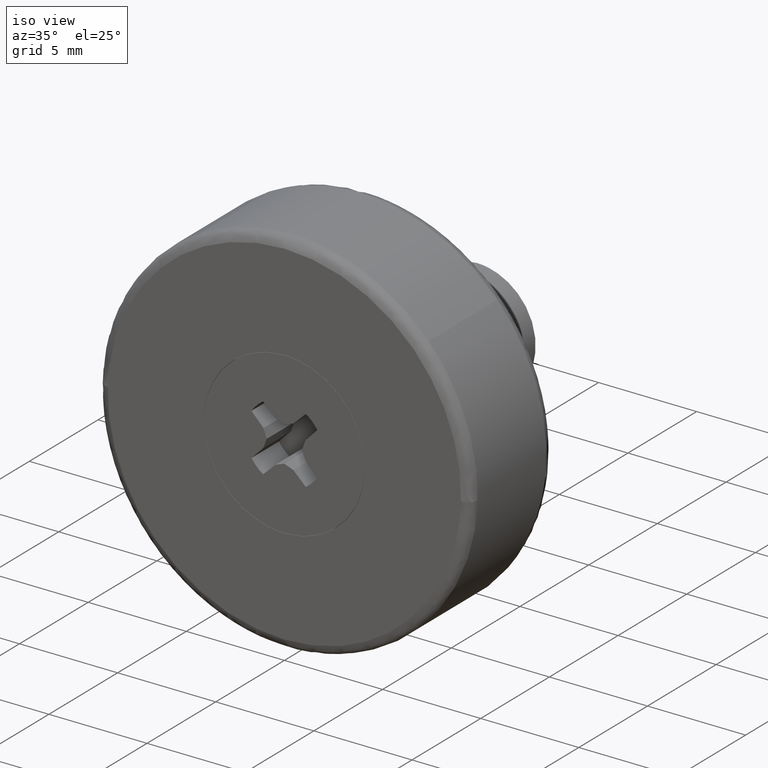
[diagram: clean part render]
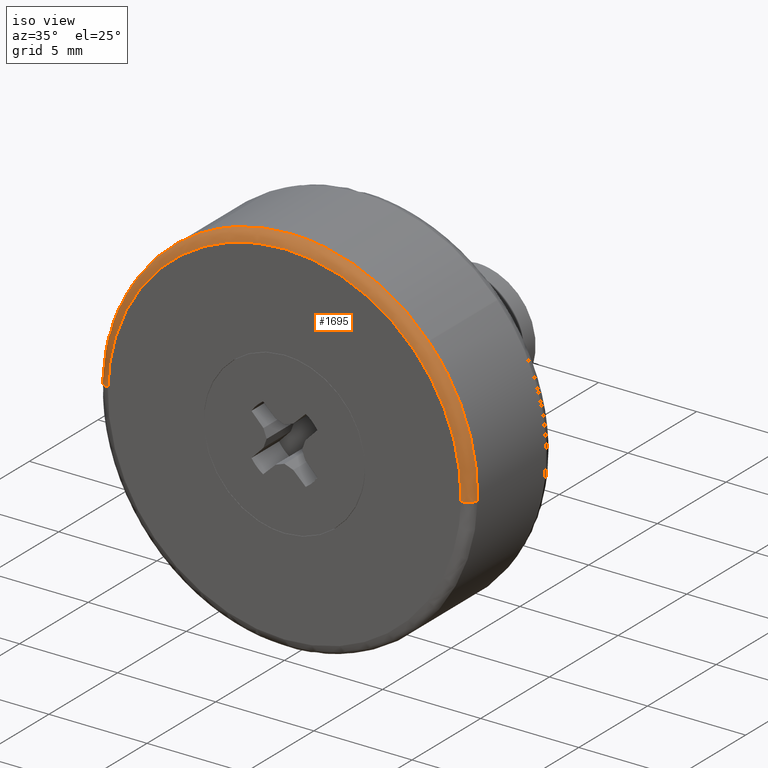
[diagram: same view with one face highlighted and labeled with its STEP entity id]
A machine part, iso view. The second image highlights one B-rep face of the part: STEP entity #1695.
In plain terms, the highlighted face is a freeform B-spline surface patch.
Its self-contained STEP definition (entity closure, byte-faithful):
#1328=CARTESIAN_POINT('',(-4.600085988359925,0.499999999981940,8.311991873172854));
#1329=VERTEX_POINT('',#1328);
#1330=CARTESIAN_POINT('',(-9.496999798191341,0.499999999859289,0.238735906711980));
#1331=VERTEX_POINT('',#1330);
#1332=CARTESIAN_POINT('',(-4.600085988359925,0.499999999981940,8.311991873172854));
#1333=CARTESIAN_POINT('',(-9.360278201085677,0.499999999941924,5.677569963987287));
#1334=CARTESIAN_POINT('',(-9.496999798191341,0.499999999859289,0.238735906711980));
#1342=(BOUNDED_CURVE()B_SPLINE_CURVE(2,(#1332,#1333,#1334),.UNSPECIFIED.,.F.,.U.)B_SPLINE_CURVE_WITH_KNOTS((3,3),(0.582484261791916,0.745579891769798),.UNSPECIFIED.)CURVE()GEOMETRIC_REPRESENTATION_ITEM()RATIONAL_B_SPLINE_CURVE((0.870495159113431,0.805504439765904,0.989826157681555))REPRESENTATION_ITEM(''));
#1343=EDGE_CURVE('',#1329,#1331,#1342,.T.);
#1414=CARTESIAN_POINT('',(7.004135048799357,0.500000000000003,6.418106591369461));
#1415=VERTEX_POINT('',#1414);
#1421=CARTESIAN_POINT('',(9.496999798191341,0.499999999859289,-0.238735906711978));
#1422=VERTEX_POINT('',#1421);
#1423=CARTESIAN_POINT('',(9.496999798191341,0.499999999859289,-0.238735906711978));
#1424=CARTESIAN_POINT('',(9.500000000000000,0.500000000000000,-0.119386805172379));
#1425=CARTESIAN_POINT('',(9.500000000000000,0.500000000000000,-1.552808E-016));
#1426=CARTESIAN_POINT('',(9.499999999999998,0.500000000000000,3.694347357720723));
#1427=CARTESIAN_POINT('',(7.004135048799357,0.500000000000003,6.418106591369461));
#1435=(BOUNDED_CURVE()B_SPLINE_CURVE(2,(#1423,#1424,#1425,#1426,#1427),.UNSPECIFIED.,.F.,.U.)B_SPLINE_CURVE_WITH_KNOTS((3,2,3),(0.245579891769798,0.250000000000000,0.368415192661570),.UNSPECIFIED.)CURVE()GEOMETRIC_REPRESENTATION_ITEM()RATIONAL_B_SPLINE_CURVE((0.989826157681553,0.994821521091809,1.0,0.861267972259750,0.853959782865036))REPRESENTATION_ITEM(''));
#1436=EDGE_CURVE('',#1422,#1415,#1435,.T.);
#1485=CARTESIAN_POINT('',(0.0,0.500000000000000,9.500000000000000));
#1486=VERTEX_POINT('',#1485);
#1487=CARTESIAN_POINT('',(0.0,0.500000000000000,9.500000000000000));
#1488=CARTESIAN_POINT('',(-2.453449181909779,0.500000000000000,9.499999999999998));
#1489=CARTESIAN_POINT('',(-4.600085988359925,0.499999999981940,8.311991873172854));
#1497=(BOUNDED_CURVE()B_SPLINE_CURVE(2,(#1487,#1488,#1489),.UNSPECIFIED.,.F.,.U.)B_SPLINE_CURVE_WITH_KNOTS((3,3),(0.500000000000000,0.582484261791916),.UNSPECIFIED.)CURVE()GEOMETRIC_REPRESENTATION_ITEM()RATIONAL_B_SPLINE_CURVE((1.0,0.903363676249257,0.870495159113431))REPRESENTATION_ITEM(''));
#1498=EDGE_CURVE('',#1486,#1329,#1497,.T.);
#1500=CARTESIAN_POINT('',(7.004135048799357,0.500000000000003,6.418106591369461));
#1501=CARTESIAN_POINT('',(4.180100660255818,0.500000000000000,9.500000000000000));
#1502=CARTESIAN_POINT('',(0.0,0.500000000000000,9.500000000000000));
#1510=(BOUNDED_CURVE()B_SPLINE_CURVE(2,(#1500,#1501,#1502),.UNSPECIFIED.,.F.,.U.)B_SPLINE_CURVE_WITH_KNOTS((3,3),(0.368415192661570,0.500000000000000),.UNSPECIFIED.)CURVE()GEOMETRIC_REPRESENTATION_ITEM()RATIONAL_B_SPLINE_CURVE((0.853959782865036,0.845838808926797,1.0))REPRESENTATION_ITEM(''));
#1511=EDGE_CURVE('',#1415,#1486,#1510,.T.);
#1569=CARTESIAN_POINT('',(-8.997157704102083,-7.545715E-016,0.226170859018032));
#1570=VERTEX_POINT('',#1569);
#1588=CARTESIAN_POINT('',(-9.496999798191341,0.499999999859289,0.238735906711980));
#1589=CARTESIAN_POINT('',(-9.496999797910013,1.105827E-009,0.238735906704634));
#1590=CARTESIAN_POINT('',(-8.997157704102083,-7.545715E-016,0.226170859018032));
#1598=(BOUNDED_CURVE()B_SPLINE_CURVE(2,(#1588,#1589,#1590),.UNSPECIFIED.,.F.,.U.)B_SPLINE_CURVE_WITH_KNOTS((3,3),(-1.723441281405269,-0.263586881216809),.UNSPECIFIED.)CURVE()GEOMETRIC_REPRESENTATION_ITEM()RATIONAL_B_SPLINE_CURVE((0.883897566934423,0.626638727744861,0.888510408241346))REPRESENTATION_ITEM(''));
#1599=EDGE_CURVE('',#1331,#1570,#1598,.T.);
#1603=CARTESIAN_POINT('',(8.997157704102083,-7.389523E-016,-0.226170859018029));
#1604=VERTEX_POINT('',#1603);
#1605=CARTESIAN_POINT('',(9.496999798191341,0.499999999859289,-0.238735906711978));
#1606=CARTESIAN_POINT('',(9.496999797910013,1.105827E-009,-0.238735906704633));
#1607=CARTESIAN_POINT('',(8.997157704102083,-7.389523E-016,-0.226170859018029));
#1615=(BOUNDED_CURVE()B_SPLINE_CURVE(2,(#1605,#1606,#1607),.UNSPECIFIED.,.F.,.U.)B_SPLINE_CURVE_WITH_KNOTS((3,3),(-1.723441281405269,-0.263586881216810),.UNSPECIFIED.)CURVE()GEOMETRIC_REPRESENTATION_ITEM()RATIONAL_B_SPLINE_CURVE((0.883897566934423,0.626638727744861,0.888510408241346))REPRESENTATION_ITEM(''));
#1616=EDGE_CURVE('',#1422,#1604,#1615,.T.);
#1634=CARTESIAN_POINT('',(9.495783334874179,0.534862112566139,-0.238705327215109));
#1635=CARTESIAN_POINT('',(9.734488662089289,0.534862112566139,9.257078007659070));
#1636=CARTESIAN_POINT('',(0.238705327215109,0.534862112566139,9.495783334874179));
#1637=CARTESIAN_POINT('',(-9.257078007659070,0.534862112566139,9.734488662089289));
#1638=CARTESIAN_POINT('',(-9.495783334874179,0.534862112566139,0.238705327215110));
#1639=CARTESIAN_POINT('',(9.535857199544944,-0.038668334935734,-0.239712705399895));
#1640=CARTESIAN_POINT('',(9.775569904944836,-0.038668334935734,9.296144494145045));
#1641=CARTESIAN_POINT('',(0.239712705399896,-0.038668334935734,9.535857199544944));
#1642=CARTESIAN_POINT('',(-9.296144494145045,-0.038668334935734,9.775569904944840));
#1643=CARTESIAN_POINT('',(-9.535857199544944,-0.038668334935734,0.239712705399896));
#1644=CARTESIAN_POINT('',(8.962492943248043,0.001203854216562,-0.225299455056435));
#1645=CARTESIAN_POINT('',(9.187792398304474,0.001203854216562,8.737193488191608));
#1646=CARTESIAN_POINT('',(0.225299455056435,0.001203854216562,8.962492943248043));
#1647=CARTESIAN_POINT('',(-8.737193488191604,0.001203854216562,9.187792398304474));
#1648=CARTESIAN_POINT('',(-8.962492943248043,0.001203854216562,0.225299455056436));
#1656=(BOUNDED_SURFACE()B_SPLINE_SURFACE(2,2,((#1634,#1639,#1644),(#1635,#1640,#1645),(#1636,#1641,#1646),(#1637,#1642,#1647),(#1638,#1643,#1648)),.UNSPECIFIED.,.F.,.F.,.U.)B_SPLINE_SURFACE_WITH_KNOTS((3,2,3),(3,3),(0.0,15.738099231042860,31.476198462085719),(0.0,0.911185700394117),.UNSPECIFIED.)GEOMETRIC_REPRESENTATION_ITEM()RATIONAL_B_SPLINE_SURFACE(((0.910892958135503,0.599412749565811,0.915966979117423),(0.644098587632688,0.423848819947659,0.647686462276886),(0.910892958135503,0.599412749565811,0.915966979117423),(0.644098587632688,0.423848819947659,0.647686462276886),(0.910892958135503,0.599412749565811,0.915966979117423)))REPRESENTATION_ITEM('')SURFACE());
#1657=CARTESIAN_POINT('',(0.0,-1.665335E-015,9.0));
#1658=VERTEX_POINT('',#1657);
#1659=CARTESIAN_POINT('',(0.0,-1.665335E-015,9.0));
#1660=CARTESIAN_POINT('',(-8.776600885598302,-1.665335E-015,9.0));
#1661=CARTESIAN_POINT('',(-8.997157704102083,-7.545715E-016,0.226170859018032));
#1669=(BOUNDED_CURVE()B_SPLINE_CURVE(2,(#1659,#1660,#1661),.UNSPECIFIED.,.F.,.U.)B_SPLINE_CURVE_WITH_KNOTS((3,3),(0.500000000000000,0.745579891769259),.UNSPECIFIED.)CURVE()GEOMETRIC_REPRESENTATION_ITEM()RATIONAL_B_SPLINE_CURVE((1.0,0.712285260095370,0.989826157680335))REPRESENTATION_ITEM(''));
#1670=EDGE_CURVE('',#1658,#1570,#1669,.T.);
#1671=ORIENTED_EDGE('',*,*,#1670,.F.);
#1672=CARTESIAN_POINT('',(8.997157704102083,-7.389523E-016,-0.226170859018029));
#1673=CARTESIAN_POINT('',(9.000000000000002,-1.665335E-015,-0.113103289124521));
#1674=CARTESIAN_POINT('',(9.0,-1.665335E-015,-1.552808E-016));
#1675=CARTESIAN_POINT('',(9.0,-1.665335E-015,9.0));
#1676=CARTESIAN_POINT('',(0.0,-1.665335E-015,9.0));
#1684=(BOUNDED_CURVE()B_SPLINE_CURVE(2,(#1672,#1673,#1674,#1675,#1676),.UNSPECIFIED.,.F.,.U.)B_SPLINE_CURVE_WITH_KNOTS((3,2,3),(0.245579891769259,0.250000000000000,0.500000000000000),.UNSPECIFIED.)CURVE()GEOMETRIC_REPRESENTATION_ITEM()RATIONAL_B_SPLINE_CURVE((0.989826157680337,0.994821521091178,1.0,0.707106781186547,1.0))REPRESENTATION_ITEM(''));
#1685=EDGE_CURVE('',#1604,#1658,#1684,.T.);
#1686=ORIENTED_EDGE('',*,*,#1685,.F.);
#1687=ORIENTED_EDGE('',*,*,#1616,.F.);
#1688=ORIENTED_EDGE('',*,*,#1436,.T.);
#1689=ORIENTED_EDGE('',*,*,#1511,.T.);
#1690=ORIENTED_EDGE('',*,*,#1498,.T.);
#1691=ORIENTED_EDGE('',*,*,#1343,.T.);
#1692=ORIENTED_EDGE('',*,*,#1599,.T.);
#1693=EDGE_LOOP('',(#1671,#1686,#1687,#1688,#1689,#1690,#1691,#1692));
#1694=FACE_OUTER_BOUND('',#1693,.T.);
#1695=ADVANCED_FACE('',(#1694),#1656,.T.);